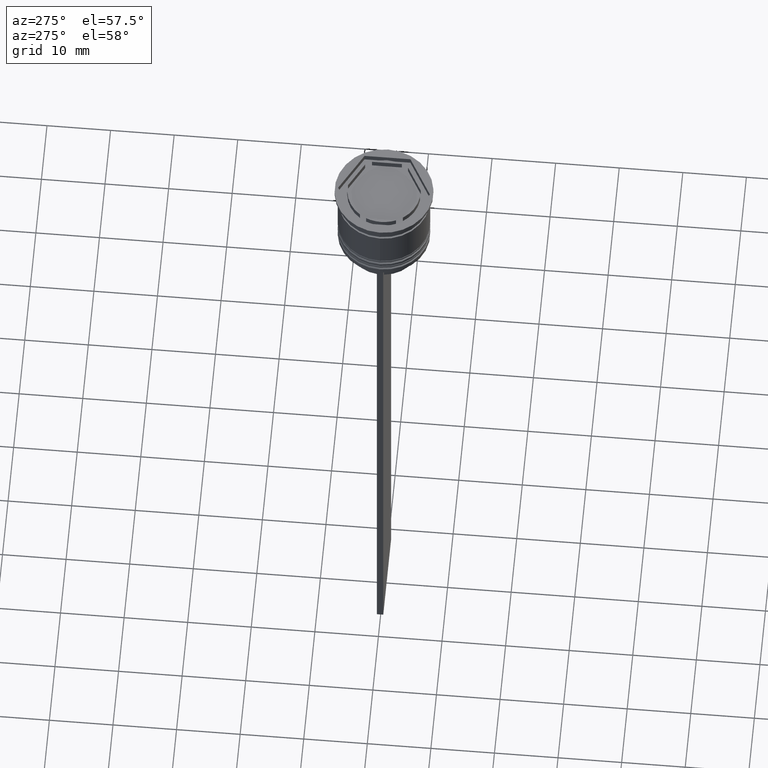
[diagram: clean part render]
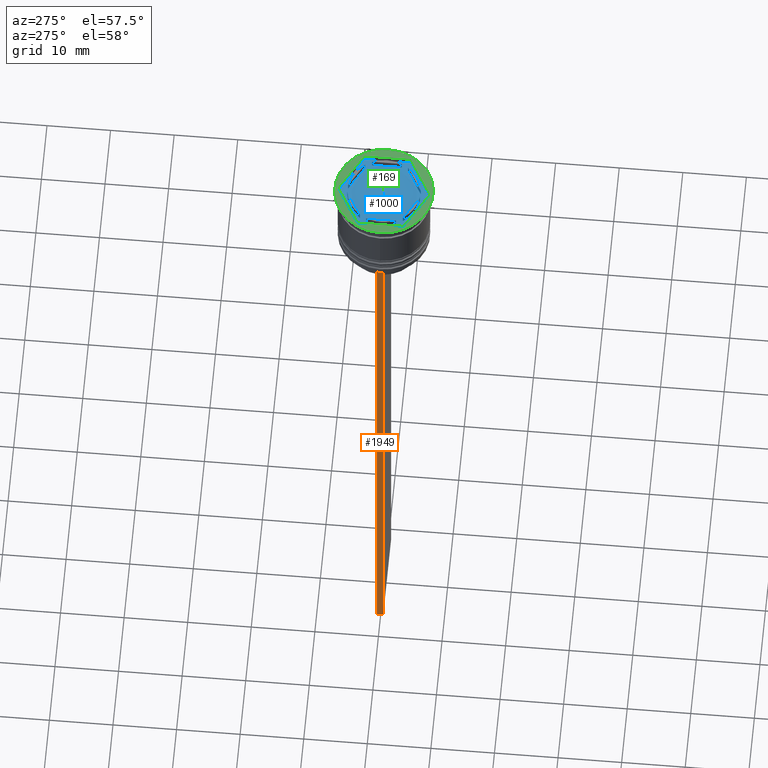
[diagram: same view with three faces highlighted in distinct colors, each labeled with its STEP entity id]
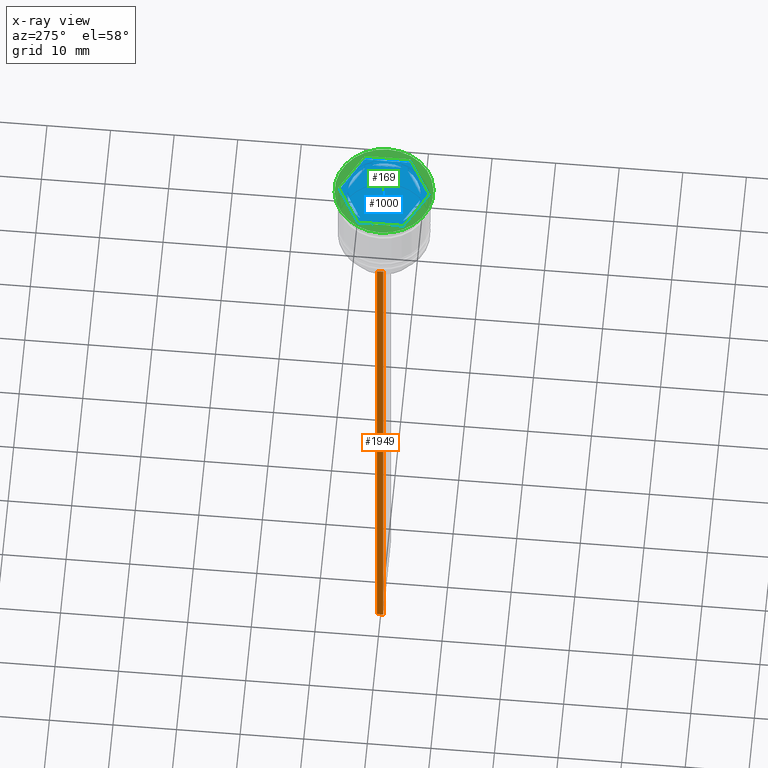
[diagram: x-ray of the same camera — body ghosted, the three highlighted faces saturated]
A machine part, auxiliary view with three faces highlighted in distinct colors.
The next image is the same camera in x-ray (body ghosted, the three faces saturated) — at least one of them is partly hidden behind the body in this view.
Their STEP definitions:

[orange] entity #1949 — the highlighted planar face has unit normal (-1, 0, 0).
#3 = LINE ( 'NONE', #1086, #1660 ) ;
#24 = EDGE_CURVE ( 'NONE', #1600, #1894, #170, .T. ) ;
#32 = CARTESIAN_POINT ( 'NONE',  ( -6.999999999999987566, -0.5000000000000022204, -12.50000000000000000 ) ) ;
#162 = CARTESIAN_POINT ( 'NONE',  ( -6.999999999999987566, -0.5000000000000022204, 1.535668847618198329 ) ) ;
#170 = LINE ( 'NONE', #1270, #973 ) ;
#213 = PLANE ( 'NONE',  #1703 ) ;
#363 = ORIENTED_EDGE ( 'NONE', *, *, #1362, .T. ) ;
#502 = DIRECTION ( 'NONE',  ( 0.000000000000000000, 0.000000000000000000, -1.000000000000000000 ) ) ;
#543 = ORIENTED_EDGE ( 'NONE', *, *, #1486, .F. ) ;
#726 = EDGE_CURVE ( 'NONE', #1330, #1600, #1612, .T. ) ;
#765 = DIRECTION ( 'NONE',  ( -1.000000000000000000, 0.000000000000000000, 0.000000000000000000 ) ) ;
#768 = DIRECTION ( 'NONE',  ( 0.000000000000000000, -1.000000000000000000, 0.000000000000000000 ) ) ;
#778 = LINE ( 'NONE', #32, #1887 ) ;
#943 = CARTESIAN_POINT ( 'NONE',  ( -6.999999999999987566, -0.5000000000000022204, 1.535668847618198329 ) ) ;
#973 = VECTOR ( 'NONE', #2172, 1000.000000000000000 ) ;
#985 = ORIENTED_EDGE ( 'NONE', *, *, #726, .F. ) ;
#1037 = EDGE_LOOP ( 'NONE', ( #543, #363, #1466, #985 ) ) ;
#1086 = CARTESIAN_POINT ( 'NONE',  ( -6.999999999999987566, 0.4999999999999978351, 1.535668847618198329 ) ) ;
#1171 = CARTESIAN_POINT ( 'NONE',  ( -6.999999999999987566, 0.4999999999999980571, -12.50000000000000000 ) ) ;
#1211 = VECTOR ( 'NONE', #1433, 1000.000000000000000 ) ;
#1270 = CARTESIAN_POINT ( 'NONE',  ( -6.999999999999987566, -0.5000000000000022204, -112.5000000000000000 ) ) ;
#1302 = FACE_OUTER_BOUND ( 'NONE', #1037, .T. ) ;
#1330 = VERTEX_POINT ( 'NONE', #2118 ) ;
#1362 = EDGE_CURVE ( 'NONE', #2125, #1894, #3, .T. ) ;
#1433 = DIRECTION ( 'NONE',  ( 0.000000000000000000, 0.000000000000000000, -1.000000000000000000 ) ) ;
#1466 = ORIENTED_EDGE ( 'NONE', *, *, #24, .F. ) ;
#1486 = EDGE_CURVE ( 'NONE', #2125, #1330, #778, .T. ) ;
#1600 = VERTEX_POINT ( 'NONE', #1725 ) ;
#1612 = LINE ( 'NONE', #162, #1211 ) ;
#1660 = VECTOR ( 'NONE', #502, 1000.000000000000000 ) ;
#1703 = AXIS2_PLACEMENT_3D ( 'NONE', #943, #765, #1982 ) ;
#1725 = CARTESIAN_POINT ( 'NONE',  ( -6.999999999999987566, -0.5000000000000022204, -112.5000000000000000 ) ) ;
#1838 = CARTESIAN_POINT ( 'NONE',  ( -6.999999999999987566, 0.4999999999999978351, -112.5000000000000000 ) ) ;
#1887 = VECTOR ( 'NONE', #768, 1000.000000000000000 ) ;
#1894 = VERTEX_POINT ( 'NONE', #1838 ) ;
#1949 = ADVANCED_FACE ( 'NONE', ( #1302 ), #213, .T. ) ;
#1982 = DIRECTION ( 'NONE',  ( 0.000000000000000000, 0.000000000000000000, 1.000000000000000000 ) ) ;
#2118 = CARTESIAN_POINT ( 'NONE',  ( -6.999999999999987566, -0.5000000000000022204, -12.50000000000000000 ) ) ;
#2125 = VERTEX_POINT ( 'NONE', #1171 ) ;
#2172 = DIRECTION ( 'NONE',  ( 0.000000000000000000, 1.000000000000000000, 0.000000000000000000 ) ) ;

[blue] entity #1000 — the highlighted planar face has unit normal (0, 0, 1).
#1 = AXIS2_PLACEMENT_3D ( 'NONE', #687, #1950, #2127 ) ;
#7 = CARTESIAN_POINT ( 'NONE',  ( -6.249999999999999112, -3.608439182435161374, -1.000000000000000000 ) ) ;
#15 = DIRECTION ( 'NONE',  ( 0.000000000000000000, 0.000000000000000000, 1.000000000000000000 ) ) ;
#28 = DIRECTION ( 'NONE',  ( -0.8660254037844388186, 0.4999999999999997224, 0.000000000000000000 ) ) ;
#33 = ORIENTED_EDGE ( 'NONE', *, *, #1988, .F. ) ;
#86 = EDGE_LOOP ( 'NONE', ( #1564, #545 ) ) ;
#141 = FACE_OUTER_BOUND ( 'NONE', #230, .T. ) ;
#148 = VECTOR ( 'NONE', #28, 1000.000000000000000 ) ;
#161 = ORIENTED_EDGE ( 'NONE', *, *, #764, .F. ) ;
#166 = FACE_BOUND ( 'NONE', #86, .T. ) ;
#173 = ORIENTED_EDGE ( 'NONE', *, *, #494, .F. ) ;
#220 = AXIS2_PLACEMENT_3D ( 'NONE', #1209, #1409, #509 ) ;
#230 = EDGE_LOOP ( 'NONE', ( #779, #1339, #766, #2093, #1262, #2098 ) ) ;
#243 = CARTESIAN_POINT ( 'NONE',  ( 0.000000000000000000, 0.000000000000000000, -1.000000000000000000 ) ) ;
#307 = CARTESIAN_POINT ( 'NONE',  ( -5.249999999999999112, -2.345207879911715310, -1.000000000000000888 ) ) ;
#309 = LINE ( 'NONE', #1741, #2259 ) ;
#313 = DIRECTION ( 'NONE',  ( 0.000000000000000000, 0.000000000000000000, 1.000000000000000000 ) ) ;
#324 = ORIENTED_EDGE ( 'NONE', *, *, #650, .F. ) ;
#330 = LINE ( 'NONE', #2099, #1440 ) ;
#339 = CIRCLE ( 'NONE', #789, 5.750000000000000000 ) ;
#369 = LINE ( 'NONE', #1052, #2341 ) ;
#376 = VERTEX_POINT ( 'NONE', #2122 ) ;
#384 = CARTESIAN_POINT ( 'NONE',  ( 0.000000000000000000, 7.216878364870320084, -1.000000000000000000 ) ) ;
#390 = CARTESIAN_POINT ( 'NONE',  ( 5.249999999999997335, -2.345207879911720639, -1.000000000000000888 ) ) ;
#395 = LINE ( 'NONE', #1477, #148 ) ;
#409 = VECTOR ( 'NONE', #1646, 1000.000000000000227 ) ;
#413 = CIRCLE ( 'NONE', #1, 5.750000000000000000 ) ;
#421 = VERTEX_POINT ( 'NONE', #7 ) ;
#470 = CARTESIAN_POINT ( 'NONE',  ( -5.750000000000000000, 0.000000000000000000, -1.000000000000000000 ) ) ;
#494 = EDGE_CURVE ( 'NONE', #1109, #376, #1733, .T. ) ;
#509 = DIRECTION ( 'NONE',  ( 1.000000000000000000, 0.000000000000000000, 0.000000000000000000 ) ) ;
#517 = EDGE_LOOP ( 'NONE', ( #173, #769 ) ) ;
#519 = LINE ( 'NONE', #1244, #606 ) ;
#545 = ORIENTED_EDGE ( 'NONE', *, *, #939, .F. ) ;
#552 = VERTEX_POINT ( 'NONE', #2209 ) ;
#553 = EDGE_CURVE ( 'NONE', #1498, #552, #2219, .T. ) ;
#606 = VECTOR ( 'NONE', #1963, 1000.000000000000000 ) ;
#607 = CIRCLE ( 'NONE', #1932, 5.750000000000000000 ) ;
#617 = VERTEX_POINT ( 'NONE', #470 ) ;
#626 = DIRECTION ( 'NONE',  ( 0.000000000000000000, 0.000000000000000000, 1.000000000000000000 ) ) ;
#650 = EDGE_CURVE ( 'NONE', #1776, #1478, #309, .T. ) ;
#687 = CARTESIAN_POINT ( 'NONE',  ( 0.000000000000000000, 0.000000000000000000, -1.000000000000000000 ) ) ;
#692 = FACE_BOUND ( 'NONE', #1548, .T. ) ;
#703 = FACE_BOUND ( 'NONE', #856, .T. ) ;
#707 = VERTEX_POINT ( 'NONE', #1588 ) ;
#729 = PLANE ( 'NONE',  #1397 ) ;
#733 = EDGE_CURVE ( 'NONE', #2157, #948, #1246, .T. ) ;
#749 = AXIS2_PLACEMENT_3D ( 'NONE', #243, #1363, #1347 ) ;
#750 = VECTOR ( 'NONE', #1648, 1000.000000000000114 ) ;
#751 = CARTESIAN_POINT ( 'NONE',  ( -5.249999999999999112, 2.345207879911715310, -1.000000000000000888 ) ) ;
#764 = EDGE_CURVE ( 'NONE', #707, #807, #827, .T. ) ;
#766 = ORIENTED_EDGE ( 'NONE', *, *, #2170, .T. ) ;
#769 = ORIENTED_EDGE ( 'NONE', *, *, #1782, .F. ) ;
#779 = ORIENTED_EDGE ( 'NONE', *, *, #1909, .T. ) ;
#789 = AXIS2_PLACEMENT_3D ( 'NONE', #1859, #15, #1306 ) ;
#807 = VERTEX_POINT ( 'NONE', #2056 ) ;
#827 = CIRCLE ( 'NONE', #1844, 5.750000000000000000 ) ;
#833 = VECTOR ( 'NONE', #2331, 1000.000000000000000 ) ;
#852 = DIRECTION ( 'NONE',  ( 0.8660254037844387076, 0.4999999999999999445, -0.000000000000000000 ) ) ;
#854 = DIRECTION ( 'NONE',  ( -0.8660254037844387076, -0.4999999999999997224, 0.000000000000000000 ) ) ;
#856 = EDGE_LOOP ( 'NONE', ( #33, #324 ) ) ;
#927 = LINE ( 'NONE', #1299, #750 ) ;
#939 = EDGE_CURVE ( 'NONE', #1683, #1773, #369, .T. ) ;
#948 = VERTEX_POINT ( 'NONE', #1628 ) ;
#949 = CARTESIAN_POINT ( 'NONE',  ( 0.000000000000000000, 0.000000000000000000, -1.000000000000000000 ) ) ;
#963 = EDGE_CURVE ( 'NONE', #552, #1498, #1970, .T. ) ;
#989 = DIRECTION ( 'NONE',  ( -0.8660254037844385966, -0.5000000000000001110, 0.000000000000000000 ) ) ;
#1000 = ADVANCED_FACE ( 'NONE', ( #692, #1404, #703, #166, #1439, #1238, #141 ), #729, .T. ) ;
#1001 = CARTESIAN_POINT ( 'NONE',  ( 6.250000000000000000, 3.608439182435161374, -1.000000000000000000 ) ) ;
#1052 = CARTESIAN_POINT ( 'NONE',  ( -5.249999999999999112, -3.031088913245534311, -1.000000000000000888 ) ) ;
#1064 = ORIENTED_EDGE ( 'NONE', *, *, #1831, .F. ) ;
#1078 = EDGE_CURVE ( 'NONE', #807, #707, #927, .T. ) ;
#1091 = EDGE_CURVE ( 'NONE', #1773, #1683, #339, .T. ) ;
#1097 = AXIS2_PLACEMENT_3D ( 'NONE', #949, #626, #1327 ) ;
#1105 = VECTOR ( 'NONE', #1583, 1000.000000000000000 ) ;
#1109 = VERTEX_POINT ( 'NONE', #1492 ) ;
#1117 = CARTESIAN_POINT ( 'NONE',  ( 0.5939903988410074609, -5.719237309824160675, -1.000000000000000888 ) ) ;
#1164 = CARTESIAN_POINT ( 'NONE',  ( 0.000000000000000000, 7.216878364870320084, -1.000000000000000000 ) ) ;
#1175 = VERTEX_POINT ( 'NONE', #1880 ) ;
#1182 = CARTESIAN_POINT ( 'NONE',  ( 0.000000000000000000, 0.000000000000000000, -1.000000000000000000 ) ) ;
#1201 = VERTEX_POINT ( 'NONE', #1001 ) ;
#1209 = CARTESIAN_POINT ( 'NONE',  ( 0.000000000000000000, 0.000000000000000000, -1.000000000000000000 ) ) ;
#1227 = DIRECTION ( 'NONE',  ( -0.8660254037844384856, 0.5000000000000002220, 0.000000000000000000 ) ) ;
#1238 = FACE_BOUND ( 'NONE', #517, .T. ) ;
#1244 = CARTESIAN_POINT ( 'NONE',  ( 6.249999999999998224, -3.608439182435161374, -1.000000000000000000 ) ) ;
#1246 = LINE ( 'NONE', #2333, #1507 ) ;
#1262 = ORIENTED_EDGE ( 'NONE', *, *, #733, .T. ) ;
#1268 = EDGE_CURVE ( 'NONE', #2313, #1175, #2238, .T. ) ;
#1299 = CARTESIAN_POINT ( 'NONE',  ( 5.249999999999997335, 3.031088913245537864, -1.000000000000000888 ) ) ;
#1306 = DIRECTION ( 'NONE',  ( 1.000000000000000000, 0.000000000000000000, 0.000000000000000000 ) ) ;
#1309 = ORIENTED_EDGE ( 'NONE', *, *, #963, .F. ) ;
#1327 = DIRECTION ( 'NONE',  ( 1.000000000000000000, 0.000000000000000000, 0.000000000000000000 ) ) ;
#1339 = ORIENTED_EDGE ( 'NONE', *, *, #1268, .T. ) ;
#1347 = DIRECTION ( 'NONE',  ( 1.000000000000000000, 0.000000000000000000, 0.000000000000000000 ) ) ;
#1351 = DIRECTION ( 'NONE',  ( 1.000000000000000000, 0.000000000000000000, 0.000000000000000000 ) ) ;
#1363 = DIRECTION ( 'NONE',  ( 0.000000000000000000, 0.000000000000000000, 1.000000000000000000 ) ) ;
#1397 = AXIS2_PLACEMENT_3D ( 'NONE', #1449, #1615, #1414 ) ;
#1404 = FACE_BOUND ( 'NONE', #1480, .T. ) ;
#1409 = DIRECTION ( 'NONE',  ( 0.000000000000000000, 0.000000000000000000, 1.000000000000000000 ) ) ;
#1414 = DIRECTION ( 'NONE',  ( 1.000000000000000000, 0.000000000000000000, -0.000000000000000000 ) ) ;
#1417 = LINE ( 'NONE', #1427, #1105 ) ;
#1427 = CARTESIAN_POINT ( 'NONE',  ( -6.249999999999999112, 3.608439182435158710, -1.000000000000000000 ) ) ;
#1430 = EDGE_CURVE ( 'NONE', #421, #2157, #1455, .T. ) ;
#1439 = FACE_BOUND ( 'NONE', #1825, .T. ) ;
#1440 = VECTOR ( 'NONE', #852, 1000.000000000000000 ) ;
#1449 = CARTESIAN_POINT ( 'NONE',  ( 0.000000000000000000, 0.000000000000000000, -1.000000000000000000 ) ) ;
#1453 = CARTESIAN_POINT ( 'NONE',  ( 0.000000000000000000, 0.000000000000000000, -1.000000000000000000 ) ) ;
#1455 = LINE ( 'NONE', #1813, #409 ) ;
#1470 = VECTOR ( 'NONE', #989, 1000.000000000000114 ) ;
#1477 = CARTESIAN_POINT ( 'NONE',  ( 6.250000000000000000, 3.608439182435161374, -1.000000000000000000 ) ) ;
#1478 = VERTEX_POINT ( 'NONE', #1117 ) ;
#1480 = EDGE_LOOP ( 'NONE', ( #1680, #1309 ) ) ;
#1492 = CARTESIAN_POINT ( 'NONE',  ( -0.5939903988410105695, 5.719237309824159787, -1.000000000000000888 ) ) ;
#1498 = VERTEX_POINT ( 'NONE', #390 ) ;
#1507 = VECTOR ( 'NONE', #1791, 1000.000000000000000 ) ;
#1536 = CARTESIAN_POINT ( 'NONE',  ( -0.5939903988410105695, -5.719237309824160675, -1.000000000000000888 ) ) ;
#1548 = EDGE_LOOP ( 'NONE', ( #161, #1676 ) ) ;
#1564 = ORIENTED_EDGE ( 'NONE', *, *, #1091, .F. ) ;
#1572 = CARTESIAN_POINT ( 'NONE',  ( -4.656009601158991096, -3.374029429912444034, -1.000000000000000888 ) ) ;
#1583 = DIRECTION ( 'NONE',  ( 0.000000000000000000, -1.000000000000000000, 0.000000000000000000 ) ) ;
#1588 = CARTESIAN_POINT ( 'NONE',  ( 4.656009601158988431, 3.374029429912448919, -1.000000000000000888 ) ) ;
#1604 = CARTESIAN_POINT ( 'NONE',  ( 5.249999999999996447, -3.031088913245536975, -1.000000000000000888 ) ) ;
#1615 = DIRECTION ( 'NONE',  ( 0.000000000000000000, 0.000000000000000000, 1.000000000000000000 ) ) ;
#1621 = LINE ( 'NONE', #2308, #833 ) ;
#1624 = VECTOR ( 'NONE', #1956, 1000.000000000000000 ) ;
#1628 = CARTESIAN_POINT ( 'NONE',  ( 6.249999999999998224, -3.608439182435161374, -1.000000000000000000 ) ) ;
#1637 = ORIENTED_EDGE ( 'NONE', *, *, #1816, .F. ) ;
#1646 = DIRECTION ( 'NONE',  ( 0.8660254037844385966, -0.4999999999999998890, 0.000000000000000000 ) ) ;
#1648 = DIRECTION ( 'NONE',  ( 0.8660254037844387076, -0.4999999999999998335, 0.000000000000000000 ) ) ;
#1676 = ORIENTED_EDGE ( 'NONE', *, *, #1078, .F. ) ;
#1680 = ORIENTED_EDGE ( 'NONE', *, *, #553, .F. ) ;
#1683 = VERTEX_POINT ( 'NONE', #1536 ) ;
#1733 = CIRCLE ( 'NONE', #749, 5.750000000000000000 ) ;
#1741 = CARTESIAN_POINT ( 'NONE',  ( -1.734723475976807094E-15, -6.062177826491069510, -1.000000000000000888 ) ) ;
#1751 = VERTEX_POINT ( 'NONE', #307 ) ;
#1773 = VERTEX_POINT ( 'NONE', #1572 ) ;
#1776 = VERTEX_POINT ( 'NONE', #1973 ) ;
#1782 = EDGE_CURVE ( 'NONE', #376, #1109, #330, .T. ) ;
#1786 = EDGE_CURVE ( 'NONE', #2318, #617, #1928, .T. ) ;
#1791 = DIRECTION ( 'NONE',  ( 0.8660254037844385966, 0.5000000000000001110, 0.000000000000000000 ) ) ;
#1813 = CARTESIAN_POINT ( 'NONE',  ( -6.249999999999999112, -3.608439182435161374, -1.000000000000000000 ) ) ;
#1816 = EDGE_CURVE ( 'NONE', #1751, #2318, #1621, .T. ) ;
#1825 = EDGE_LOOP ( 'NONE', ( #1995, #1637, #1064 ) ) ;
#1831 = EDGE_CURVE ( 'NONE', #617, #1751, #413, .T. ) ;
#1844 = AXIS2_PLACEMENT_3D ( 'NONE', #1182, #313, #1351 ) ;
#1845 = EDGE_CURVE ( 'NONE', #948, #1201, #519, .T. ) ;
#1859 = CARTESIAN_POINT ( 'NONE',  ( 0.000000000000000000, 0.000000000000000000, -1.000000000000000000 ) ) ;
#1880 = CARTESIAN_POINT ( 'NONE',  ( -6.249999999999999112, 3.608439182435158710, -1.000000000000000000 ) ) ;
#1909 = EDGE_CURVE ( 'NONE', #1201, #2313, #395, .T. ) ;
#1928 = CIRCLE ( 'NONE', #220, 5.750000000000000000 ) ;
#1932 = AXIS2_PLACEMENT_3D ( 'NONE', #1453, #2173, #2183 ) ;
#1939 = CARTESIAN_POINT ( 'NONE',  ( 8.729740977282959667E-16, -7.216878364870321860, -1.000000000000000000 ) ) ;
#1950 = DIRECTION ( 'NONE',  ( 0.000000000000000000, 0.000000000000000000, 1.000000000000000000 ) ) ;
#1956 = DIRECTION ( 'NONE',  ( -1.430775808321103440E-16, -1.000000000000000000, 0.000000000000000000 ) ) ;
#1963 = DIRECTION ( 'NONE',  ( 2.403703357979454647E-16, 1.000000000000000000, 0.000000000000000000 ) ) ;
#1970 = LINE ( 'NONE', #1604, #1624 ) ;
#1973 = CARTESIAN_POINT ( 'NONE',  ( 4.656009601158990208, -3.374029429912445810, -1.000000000000000888 ) ) ;
#1988 = EDGE_CURVE ( 'NONE', #1478, #1776, #607, .T. ) ;
#1995 = ORIENTED_EDGE ( 'NONE', *, *, #1786, .F. ) ;
#2056 = CARTESIAN_POINT ( 'NONE',  ( 0.5939903988410126789, 5.719237309824160675, -1.000000000000000888 ) ) ;
#2093 = ORIENTED_EDGE ( 'NONE', *, *, #1430, .T. ) ;
#2098 = ORIENTED_EDGE ( 'NONE', *, *, #1845, .T. ) ;
#2099 = CARTESIAN_POINT ( 'NONE',  ( 8.673617379884035472E-16, 6.062177826491070398, -1.000000000000000888 ) ) ;
#2122 = CARTESIAN_POINT ( 'NONE',  ( -4.656009601158989319, 3.374029429912446698, -1.000000000000000888 ) ) ;
#2127 = DIRECTION ( 'NONE',  ( 1.000000000000000000, 0.000000000000000000, 0.000000000000000000 ) ) ;
#2157 = VERTEX_POINT ( 'NONE', #1939 ) ;
#2170 = EDGE_CURVE ( 'NONE', #1175, #421, #1417, .T. ) ;
#2173 = DIRECTION ( 'NONE',  ( 0.000000000000000000, 0.000000000000000000, 1.000000000000000000 ) ) ;
#2183 = DIRECTION ( 'NONE',  ( 1.000000000000000000, 0.000000000000000000, 0.000000000000000000 ) ) ;
#2209 = CARTESIAN_POINT ( 'NONE',  ( 5.249999999999997335, 2.345207879911718862, -1.000000000000000888 ) ) ;
#2219 = CIRCLE ( 'NONE', #1097, 5.750000000000000000 ) ;
#2238 = LINE ( 'NONE', #1164, #1470 ) ;
#2259 = VECTOR ( 'NONE', #854, 1000.000000000000114 ) ;
#2308 = CARTESIAN_POINT ( 'NONE',  ( -5.249999999999999112, 3.031088913245535199, -1.000000000000000888 ) ) ;
#2313 = VERTEX_POINT ( 'NONE', #384 ) ;
#2318 = VERTEX_POINT ( 'NONE', #751 ) ;
#2331 = DIRECTION ( 'NONE',  ( 0.000000000000000000, 1.000000000000000000, 0.000000000000000000 ) ) ;
#2333 = CARTESIAN_POINT ( 'NONE',  ( 8.729740977282959667E-16, -7.216878364870321860, -1.000000000000000000 ) ) ;
#2341 = VECTOR ( 'NONE', #1227, 1000.000000000000114 ) ;

[green] entity #169 — the highlighted planar face has unit normal (0, -0, 1).
#2 = EDGE_CURVE ( 'NONE', #60, #2324, #732, .T. ) ;
#20 = CARTESIAN_POINT ( 'NONE',  ( 6.249999999999998224, -3.608439182435161374, 0.000000000000000000 ) ) ;
#30 = VECTOR ( 'NONE', #2043, 1000.000000000000227 ) ;
#47 = FACE_OUTER_BOUND ( 'NONE', #1493, .T. ) ;
#58 = PLANE ( 'NONE',  #178 ) ;
#60 = VERTEX_POINT ( 'NONE', #763 ) ;
#73 = VECTOR ( 'NONE', #2278, 1000.000000000000000 ) ;
#113 = ORIENTED_EDGE ( 'NONE', *, *, #1670, .F. ) ;
#120 = CARTESIAN_POINT ( 'NONE',  ( 6.250000000000000000, 3.608439182435161374, 0.000000000000000000 ) ) ;
#169 = ADVANCED_FACE ( 'NONE', ( #1685, #47 ), #58, .T. ) ;
#178 = AXIS2_PLACEMENT_3D ( 'NONE', #1301, #941, #1663 ) ;
#236 = ORIENTED_EDGE ( 'NONE', *, *, #2126, .F. ) ;
#291 = VERTEX_POINT ( 'NONE', #477 ) ;
#323 = CARTESIAN_POINT ( 'NONE',  ( 8.729740977282959667E-16, -7.216878364870321860, 0.000000000000000000 ) ) ;
#327 = CARTESIAN_POINT ( 'NONE',  ( -6.249999999999999112, -3.608439182435161374, 0.000000000000000000 ) ) ;
#405 = VECTOR ( 'NONE', #1258, 1000.000000000000114 ) ;
#426 = ORIENTED_EDGE ( 'NONE', *, *, #1394, .F. ) ;
#467 = ORIENTED_EDGE ( 'NONE', *, *, #1471, .T. ) ;
#477 = CARTESIAN_POINT ( 'NONE',  ( 8.729740977282959667E-16, -7.216878364870321860, 0.000000000000000000 ) ) ;
#478 = LINE ( 'NONE', #120, #73 ) ;
#513 = EDGE_LOOP ( 'NONE', ( #1237, #113, #426, #2040, #236, #735 ) ) ;
#554 = DIRECTION ( 'NONE',  ( 1.000000000000000000, 0.000000000000000000, 0.000000000000000000 ) ) ;
#643 = VECTOR ( 'NONE', #1547, 1000.000000000000000 ) ;
#732 = LINE ( 'NONE', #1788, #405 ) ;
#735 = ORIENTED_EDGE ( 'NONE', *, *, #2, .F. ) ;
#748 = LINE ( 'NONE', #1315, #30 ) ;
#762 = CARTESIAN_POINT ( 'NONE',  ( -6.249999999999999112, 3.608439182435158710, 0.000000000000000000 ) ) ;
#763 = CARTESIAN_POINT ( 'NONE',  ( 0.000000000000000000, 7.216878364870319196, 0.000000000000000000 ) ) ;
#810 = CARTESIAN_POINT ( 'NONE',  ( -6.249999999999999112, 3.608439182435158710, 0.000000000000000000 ) ) ;
#917 = DIRECTION ( 'NONE',  ( -0.000000000000000000, -0.000000000000000000, 1.000000000000000000 ) ) ;
#941 = DIRECTION ( 'NONE',  ( 0.000000000000000000, -0.000000000000000000, 1.000000000000000000 ) ) ;
#942 = VECTOR ( 'NONE', #1590, 1000.000000000000000 ) ;
#1084 = VERTEX_POINT ( 'NONE', #1329 ) ;
#1085 = EDGE_CURVE ( 'NONE', #2283, #291, #748, .T. ) ;
#1104 = AXIS2_PLACEMENT_3D ( 'NONE', #1654, #917, #554 ) ;
#1159 = VERTEX_POINT ( 'NONE', #1869 ) ;
#1197 = DIRECTION ( 'NONE',  ( 2.403703357979454647E-16, 1.000000000000000000, 0.000000000000000000 ) ) ;
#1237 = ORIENTED_EDGE ( 'NONE', *, *, #2177, .F. ) ;
#1254 = CIRCLE ( 'NONE', #2113, 7.750000000000000000 ) ;
#1258 = DIRECTION ( 'NONE',  ( -0.8660254037844385966, -0.5000000000000001110, 0.000000000000000000 ) ) ;
#1273 = LINE ( 'NONE', #323, #942 ) ;
#1301 = CARTESIAN_POINT ( 'NONE',  ( 0.000000000000000000, 0.000000000000000000, 0.000000000000000000 ) ) ;
#1315 = CARTESIAN_POINT ( 'NONE',  ( -6.249999999999999112, -3.608439182435161374, 0.000000000000000000 ) ) ;
#1329 = CARTESIAN_POINT ( 'NONE',  ( 6.250000000000000000, 3.608439182435161374, 0.000000000000000000 ) ) ;
#1334 = LINE ( 'NONE', #810, #643 ) ;
#1394 = EDGE_CURVE ( 'NONE', #291, #1428, #1273, .T. ) ;
#1419 = CARTESIAN_POINT ( 'NONE',  ( -7.750000000000000000, 9.491012693391987787E-16, 0.000000000000000000 ) ) ;
#1428 = VERTEX_POINT ( 'NONE', #20 ) ;
#1437 = ORIENTED_EDGE ( 'NONE', *, *, #1762, .T. ) ;
#1471 = EDGE_CURVE ( 'NONE', #1814, #1159, #1512, .T. ) ;
#1493 = EDGE_LOOP ( 'NONE', ( #1437, #467 ) ) ;
#1512 = CIRCLE ( 'NONE', #1104, 7.750000000000000000 ) ;
#1547 = DIRECTION ( 'NONE',  ( 0.000000000000000000, -1.000000000000000000, 0.000000000000000000 ) ) ;
#1590 = DIRECTION ( 'NONE',  ( 0.8660254037844385966, 0.5000000000000001110, 0.000000000000000000 ) ) ;
#1610 = DIRECTION ( 'NONE',  ( -0.000000000000000000, -0.000000000000000000, 1.000000000000000000 ) ) ;
#1654 = CARTESIAN_POINT ( 'NONE',  ( 0.000000000000000000, 0.000000000000000000, 0.000000000000000000 ) ) ;
#1663 = DIRECTION ( 'NONE',  ( 1.000000000000000000, 0.000000000000000000, 0.000000000000000000 ) ) ;
#1670 = EDGE_CURVE ( 'NONE', #1428, #1084, #1715, .T. ) ;
#1685 = FACE_BOUND ( 'NONE', #513, .T. ) ;
#1715 = LINE ( 'NONE', #2049, #2002 ) ;
#1762 = EDGE_CURVE ( 'NONE', #1159, #1814, #1254, .T. ) ;
#1788 = CARTESIAN_POINT ( 'NONE',  ( 0.000000000000000000, 7.216878364870320084, 0.000000000000000000 ) ) ;
#1814 = VERTEX_POINT ( 'NONE', #1419 ) ;
#1869 = CARTESIAN_POINT ( 'NONE',  ( 7.750000000000000000, 0.000000000000000000, 0.000000000000000000 ) ) ;
#1929 = CARTESIAN_POINT ( 'NONE',  ( 0.000000000000000000, 0.000000000000000000, 0.000000000000000000 ) ) ;
#2002 = VECTOR ( 'NONE', #1197, 1000.000000000000000 ) ;
#2040 = ORIENTED_EDGE ( 'NONE', *, *, #1085, .F. ) ;
#2043 = DIRECTION ( 'NONE',  ( 0.8660254037844385966, -0.4999999999999998890, 0.000000000000000000 ) ) ;
#2049 = CARTESIAN_POINT ( 'NONE',  ( 6.249999999999998224, -3.608439182435161374, 0.000000000000000000 ) ) ;
#2113 = AXIS2_PLACEMENT_3D ( 'NONE', #1929, #1610, #2114 ) ;
#2114 = DIRECTION ( 'NONE',  ( 1.000000000000000000, 0.000000000000000000, 0.000000000000000000 ) ) ;
#2126 = EDGE_CURVE ( 'NONE', #2324, #2283, #1334, .T. ) ;
#2177 = EDGE_CURVE ( 'NONE', #1084, #60, #478, .T. ) ;
#2278 = DIRECTION ( 'NONE',  ( -0.8660254037844388186, 0.4999999999999997224, 0.000000000000000000 ) ) ;
#2283 = VERTEX_POINT ( 'NONE', #327 ) ;
#2324 = VERTEX_POINT ( 'NONE', #762 ) ;